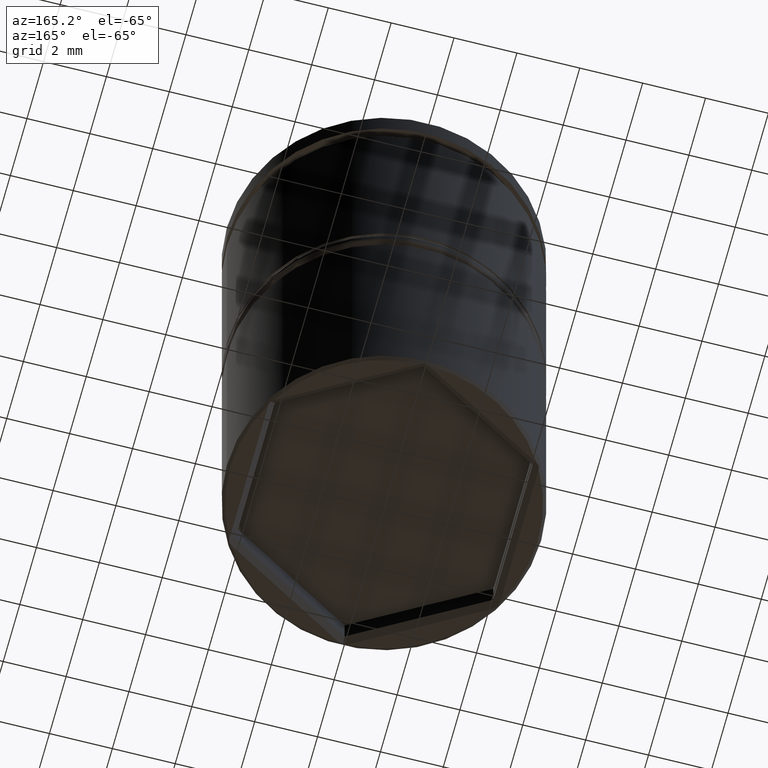
[diagram: clean part render]
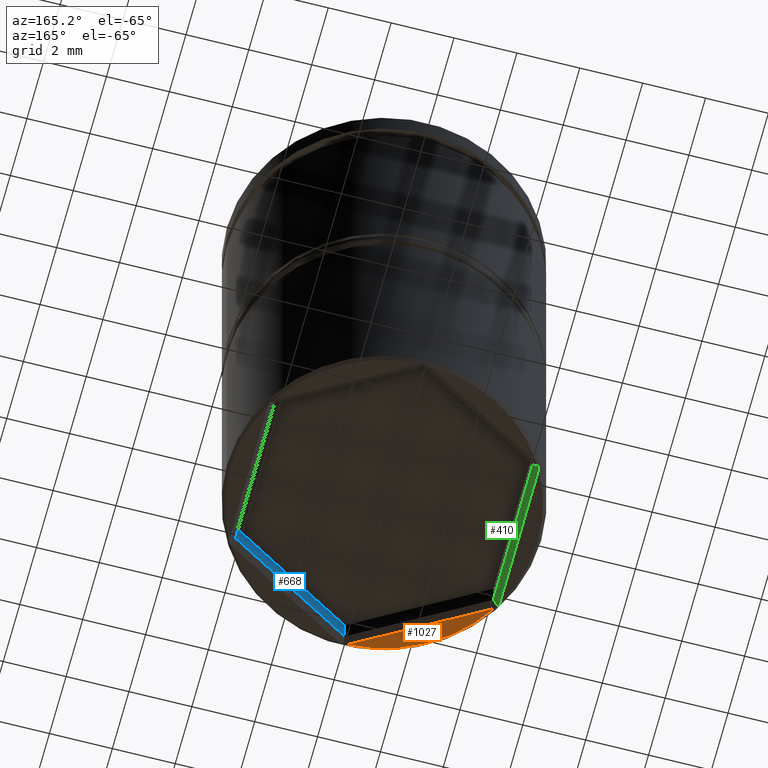
[diagram: same view with three faces highlighted in distinct colors, each labeled with its STEP entity id]
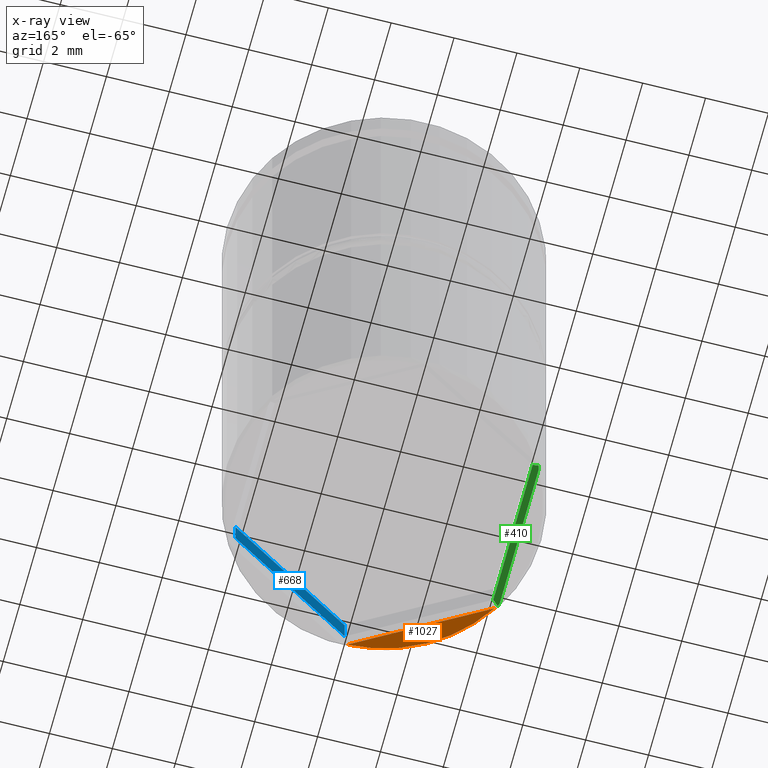
[diagram: x-ray of the same camera — body ghosted, the three highlighted faces saturated]
A machine part, auxiliary view with three faces highlighted in distinct colors.
The next image is the same camera in x-ray (body ghosted, the three faces saturated) — at least one of them is partly hidden behind the body in this view.
Their STEP definitions:

[orange] entity #1027 — the highlighted planar face has unit normal (0, 0, -1).
#54 = CARTESIAN_POINT ( 'NONE',  ( -4.184698994937568806, -2.549175223826016357, -17.50000000000000000 ) ) ;
#86 = EDGE_CURVE ( 'NONE', #387, #595, #1176, .T. ) ;
#169 = VECTOR ( 'NONE', #224, 999.9999999999998863 ) ;
#177 = AXIS2_PLACEMENT_3D ( 'NONE', #890, #1315, #1082 ) ;
#224 = DIRECTION ( 'NONE',  ( 0.8660254037844385966, -0.5000000000000002220, 0.000000000000000000 ) ) ;
#254 = ORIENTED_EDGE ( 'NONE', *, *, #86, .T. ) ;
#387 = VERTEX_POINT ( 'NONE', #54 ) ;
#421 = CARTESIAN_POINT ( 'NONE',  ( -0.1153010050624291294, -4.898643248720151000, -17.50000000000000000 ) ) ;
#447 = DIRECTION ( 'NONE',  ( 0.000000000000000000, 0.000000000000000000, -1.000000000000000000 ) ) ;
#456 = FACE_OUTER_BOUND ( 'NONE', #491, .T. ) ;
#480 = CIRCLE ( 'NONE', #598, 4.899999999999991473 ) ;
#491 = EDGE_LOOP ( 'NONE', ( #970, #254 ) ) ;
#539 = CARTESIAN_POINT ( 'NONE',  ( -0.1000000000000036277, -4.907477288111813607, -17.50000000000000000 ) ) ;
#595 = VERTEX_POINT ( 'NONE', #421 ) ;
#598 = AXIS2_PLACEMENT_3D ( 'NONE', #1201, #447, #652 ) ;
#652 = DIRECTION ( 'NONE',  ( -1.000000000000000000, 0.000000000000000000, 0.000000000000000000 ) ) ;
#724 = EDGE_CURVE ( 'NONE', #595, #387, #480, .T. ) ;
#890 = CARTESIAN_POINT ( 'NONE',  ( 0.000000000000000000, 5.000000000000000000, -17.50000000000000000 ) ) ;
#970 = ORIENTED_EDGE ( 'NONE', *, *, #724, .T. ) ;
#1027 = ADVANCED_FACE ( 'NONE', ( #456 ), #1205, .T. ) ;
#1082 = DIRECTION ( 'NONE',  ( -1.000000000000000000, 0.000000000000000000, -0.000000000000000000 ) ) ;
#1176 = LINE ( 'NONE', #539, #169 ) ;
#1201 = CARTESIAN_POINT ( 'NONE',  ( 0.000000000000000000, 0.000000000000000000, -17.50000000000000000 ) ) ;
#1205 = PLANE ( 'NONE',  #177 ) ;
#1315 = DIRECTION ( 'NONE',  ( 0.000000000000000000, 0.000000000000000000, -1.000000000000000000 ) ) ;

[blue] entity #668 — the highlighted planar face has unit normal (0.5, -0.866, 0).
#27 = VERTEX_POINT ( 'NONE', #363 ) ;
#34 = VECTOR ( 'NONE', #1033, 1000.000000000000000 ) ;
#44 = CARTESIAN_POINT ( 'NONE',  ( -8.646952822150503169E-16, -4.734272207354920603, -16.50000000000000000 ) ) ;
#60 = AXIS2_PLACEMENT_3D ( 'NONE', #986, #1063, #765 ) ;
#218 = PLANE ( 'NONE',  #60 ) ;
#250 = CARTESIAN_POINT ( 'NONE',  ( -8.646952822150503169E-16, -4.734272207354920603, -16.50000000000000000 ) ) ;
#261 = ORIENTED_EDGE ( 'NONE', *, *, #745, .F. ) ;
#264 = LINE ( 'NONE', #678, #1379 ) ;
#290 = EDGE_CURVE ( 'NONE', #1370, #1110, #264, .T. ) ;
#301 = CARTESIAN_POINT ( 'NONE',  ( 4.099999999999990763, -2.367136103677460301, -16.50000000000000000 ) ) ;
#314 = EDGE_LOOP ( 'NONE', ( #1039, #1119, #261, #676 ) ) ;
#332 = FACE_OUTER_BOUND ( 'NONE', #314, .T. ) ;
#363 = CARTESIAN_POINT ( 'NONE',  ( 4.099999999999990763, -2.367136103677460301, -16.50000000000000000 ) ) ;
#422 = EDGE_CURVE ( 'NONE', #27, #1370, #1011, .T. ) ;
#442 = LINE ( 'NONE', #301, #500 ) ;
#467 = DIRECTION ( 'NONE',  ( -0.000000000000000000, -0.000000000000000000, -1.000000000000000000 ) ) ;
#500 = VECTOR ( 'NONE', #925, 1000.000000000000000 ) ;
#565 = CARTESIAN_POINT ( 'NONE',  ( 4.099999999999990763, -2.367136103677460301, -17.29999999999999716 ) ) ;
#668 = ADVANCED_FACE ( 'NONE', ( #332 ), #218, .F. ) ;
#676 = ORIENTED_EDGE ( 'NONE', *, *, #772, .F. ) ;
#678 = CARTESIAN_POINT ( 'NONE',  ( -1.043544591017298018E-15, -4.734272207354920603, -17.29999999999999716 ) ) ;
#745 = EDGE_CURVE ( 'NONE', #1005, #1110, #1016, .T. ) ;
#765 = DIRECTION ( 'NONE',  ( 0.8660254037844387076, 0.4999999999999998890, 0.000000000000000000 ) ) ;
#772 = EDGE_CURVE ( 'NONE', #27, #1005, #442, .T. ) ;
#839 = VECTOR ( 'NONE', #467, 1000.000000000000000 ) ;
#925 = DIRECTION ( 'NONE',  ( -0.8660254037844387076, -0.4999999999999999445, 0.000000000000000000 ) ) ;
#986 = CARTESIAN_POINT ( 'NONE',  ( 4.099999999999990763, -2.367136103677460301, -16.50000000000000000 ) ) ;
#1005 = VERTEX_POINT ( 'NONE', #250 ) ;
#1011 = LINE ( 'NONE', #1018, #34 ) ;
#1016 = LINE ( 'NONE', #44, #839 ) ;
#1018 = CARTESIAN_POINT ( 'NONE',  ( 4.099999999999990763, -2.367136103677460301, -16.50000000000000000 ) ) ;
#1029 = DIRECTION ( 'NONE',  ( -0.8660254037844387076, -0.4999999999999998890, 0.000000000000000000 ) ) ;
#1033 = DIRECTION ( 'NONE',  ( -0.000000000000000000, -0.000000000000000000, -1.000000000000000000 ) ) ;
#1039 = ORIENTED_EDGE ( 'NONE', *, *, #422, .T. ) ;
#1046 = CARTESIAN_POINT ( 'NONE',  ( -8.646952822150503169E-16, -4.734272207354920603, -17.29999999999999716 ) ) ;
#1063 = DIRECTION ( 'NONE',  ( 0.4999999999999998890, -0.8660254037844387076, 0.000000000000000000 ) ) ;
#1110 = VERTEX_POINT ( 'NONE', #1046 ) ;
#1119 = ORIENTED_EDGE ( 'NONE', *, *, #290, .T. ) ;
#1370 = VERTEX_POINT ( 'NONE', #565 ) ;
#1379 = VECTOR ( 'NONE', #1029, 1000.000000000000000 ) ;

[green] entity #410 — the highlighted planar face has unit normal (0.7071, 0, -0.7071).
#4 = DIRECTION ( 'NONE',  ( 0.000000000000000000, 1.000000000000000000, 0.000000000000000000 ) ) ;
#14 = ORIENTED_EDGE ( 'NONE', *, *, #740, .F. ) ;
#29 = LINE ( 'NONE', #353, #350 ) ;
#53 = CARTESIAN_POINT ( 'NONE',  ( -4.280035481254937046, 2.426690125759040750, -17.48003548125494078 ) ) ;
#99 = VECTOR ( 'NONE', #559, 1000.000000000000000 ) ;
#118 = DIRECTION ( 'NONE',  ( 0.000000000000000000, -1.000000000000000000, 0.000000000000000000 ) ) ;
#130 = ORIENTED_EDGE ( 'NONE', *, *, #1040, .F. ) ;
#203 = ORIENTED_EDGE ( 'NONE', *, *, #1008, .F. ) ;
#215 = LINE ( 'NONE', #844, #429 ) ;
#249 = CARTESIAN_POINT ( 'NONE',  ( -4.099999999999990763, -2.367136103677459857, -17.29999999999999716 ) ) ;
#349 = DIRECTION ( 'NONE',  ( 0.7071067811865475727, 0.000000000000000000, -0.7071067811865475727 ) ) ;
#350 = VECTOR ( 'NONE', #784, 1000.000000000000114 ) ;
#353 = CARTESIAN_POINT ( 'NONE',  ( -4.099999999999990763, -2.367136103677459857, -17.29999999999999716 ) ) ;
#391 = EDGE_CURVE ( 'NONE', #1268, #758, #1320, .T. ) ;
#395 = VECTOR ( 'NONE', #118, 1000.000000000000000 ) ;
#410 = ADVANCED_FACE ( 'NONE', ( #454 ), #445, .T. ) ;
#411 = CARTESIAN_POINT ( 'NONE',  ( -4.269734859267336091, 2.465132570366327158, -17.46973485926734071 ) ) ;
#429 = VECTOR ( 'NONE', #4, 1000.000000000000000 ) ;
#445 = PLANE ( 'NONE',  #572 ) ;
#454 = FACE_OUTER_BOUND ( 'NONE', #1355, .T. ) ;
#477 = CARTESIAN_POINT ( 'NONE',  ( -4.099999999999990763, 2.367136103677462078, -17.29999999999999716 ) ) ;
#503 = VERTEX_POINT ( 'NONE', #638 ) ;
#552 = CARTESIAN_POINT ( 'NONE',  ( -4.299999999999996270, 2.349468024894134199, -17.50000000000000000 ) ) ;
#559 = DIRECTION ( 'NONE',  ( 0.6546536707079767536, -0.3779644730092286409, 0.6546536707079767536 ) ) ;
#568 = CARTESIAN_POINT ( 'NONE',  ( -4.299999999999996270, -2.349468024894134199, -17.50000000000000000 ) ) ;
#572 = AXIS2_PLACEMENT_3D ( 'NONE', #249, #349, #1108 ) ;
#637 = B_SPLINE_CURVE_WITH_KNOTS ( 'NONE', 3,
 ( #1299, #1006, #771, #794 ),
 .UNSPECIFIED., .F., .F.,
 ( 4, 4 ),
 ( 0.000000000000000000, 0.0001233298202642975230 ),
 .UNSPECIFIED. ) ;
#638 = CARTESIAN_POINT ( 'NONE',  ( -4.099999999999990763, -2.367136103677459857, -17.29999999999999716 ) ) ;
#659 = ORIENTED_EDGE ( 'NONE', *, *, #391, .T. ) ;
#674 = VERTEX_POINT ( 'NONE', #1078 ) ;
#698 = CARTESIAN_POINT ( 'NONE',  ( -4.269734859267336091, 2.465132570366327158, -17.46973485926734071 ) ) ;
#726 = ORIENTED_EDGE ( 'NONE', *, *, #1178, .F. ) ;
#740 = EDGE_CURVE ( 'NONE', #964, #674, #637, .T. ) ;
#758 = VERTEX_POINT ( 'NONE', #993 ) ;
#761 = B_SPLINE_CURVE_WITH_KNOTS ( 'NONE', 3,
 ( #698, #53, #911, #898 ),
 .UNSPECIFIED., .F., .F.,
 ( 4, 4 ),
 ( 1.301042606982605321E-18, 0.0001233298202643010196 ),
 .UNSPECIFIED. ) ;
#771 = CARTESIAN_POINT ( 'NONE',  ( -4.280035481254937935, -2.426690125759039418, -17.48003548125494433 ) ) ;
#784 = DIRECTION ( 'NONE',  ( 0.6546536707079770867, 0.3779644730092272531, 0.6546536707079770867 ) ) ;
#794 = CARTESIAN_POINT ( 'NONE',  ( -4.269734859267336979, -2.465132570366324938, -17.46973485926734071 ) ) ;
#843 = EDGE_CURVE ( 'NONE', #1268, #1347, #761, .T. ) ;
#844 = CARTESIAN_POINT ( 'NONE',  ( -4.099999999999990763, 2.367136103677462078, -17.29999999999999716 ) ) ;
#896 = CARTESIAN_POINT ( 'NONE',  ( -4.299999999999996270, -2.367136103677459857, -17.50000000000000000 ) ) ;
#898 = CARTESIAN_POINT ( 'NONE',  ( -4.299999999999996270, 2.349468024894134199, -17.50000000000000000 ) ) ;
#911 = CARTESIAN_POINT ( 'NONE',  ( -4.290125711785978346, 2.388133565606507691, -17.49012571178598208 ) ) ;
#964 = VERTEX_POINT ( 'NONE', #568 ) ;
#993 = CARTESIAN_POINT ( 'NONE',  ( -4.099999999999990763, 2.367136103677462078, -17.29999999999999716 ) ) ;
#1006 = CARTESIAN_POINT ( 'NONE',  ( -4.290125711785978346, -2.388133565606506359, -17.49012571178598208 ) ) ;
#1008 = EDGE_CURVE ( 'NONE', #674, #503, #29, .T. ) ;
#1040 = EDGE_CURVE ( 'NONE', #1347, #964, #1109, .T. ) ;
#1078 = CARTESIAN_POINT ( 'NONE',  ( -4.269734859267336979, -2.465132570366324938, -17.46973485926734071 ) ) ;
#1108 = DIRECTION ( 'NONE',  ( 0.000000000000000000, -1.000000000000000000, 0.000000000000000000 ) ) ;
#1109 = LINE ( 'NONE', #896, #395 ) ;
#1178 = EDGE_CURVE ( 'NONE', #503, #758, #215, .T. ) ;
#1268 = VERTEX_POINT ( 'NONE', #411 ) ;
#1299 = CARTESIAN_POINT ( 'NONE',  ( -4.299999999999996270, -2.349468024894134199, -17.50000000000000000 ) ) ;
#1319 = ORIENTED_EDGE ( 'NONE', *, *, #843, .F. ) ;
#1320 = LINE ( 'NONE', #477, #99 ) ;
#1347 = VERTEX_POINT ( 'NONE', #552 ) ;
#1355 = EDGE_LOOP ( 'NONE', ( #659, #726, #203, #14, #130, #1319 ) ) ;